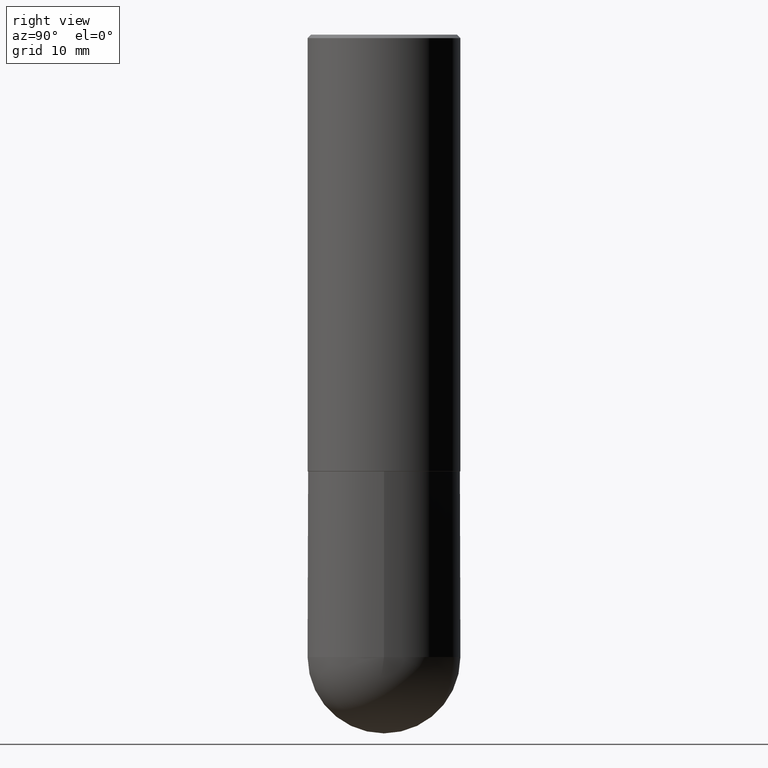
[diagram: clean part render]
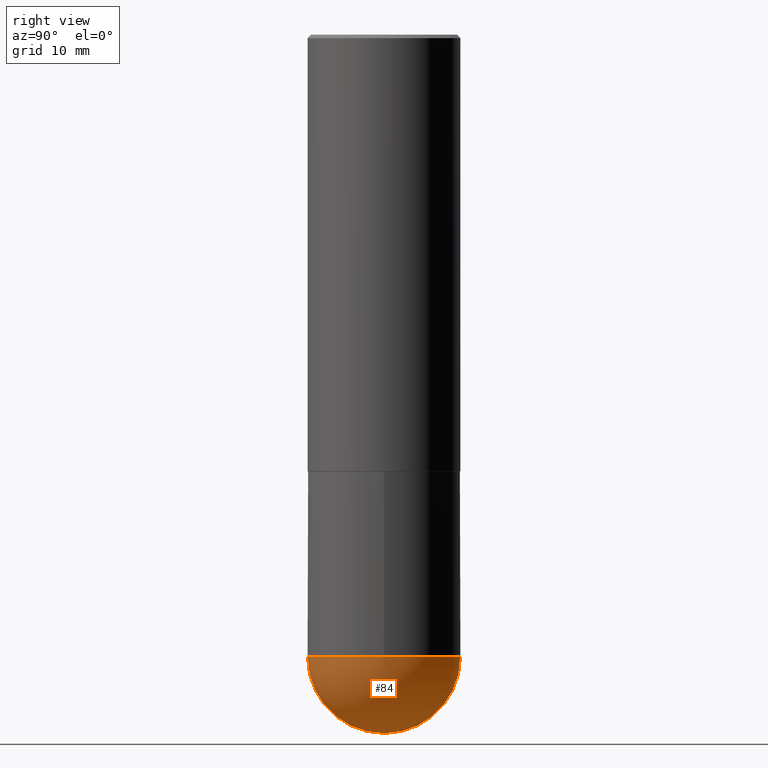
[diagram: same view with one face highlighted and labeled with its STEP entity id]
A machine part, right view. The second image highlights one B-rep face of the part: STEP entity #84.
In plain terms, the highlighted spherical surface has radius 11.1125 mm.
Its self-contained STEP definition (entity closure, byte-faithful):
#5 = EDGE_CURVE ( 'NONE', #383, #230, #282, .T. ) ;
#13 = CARTESIAN_POINT ( 'NONE',  ( 3.055046171487827277E-15, 0.4374999999999873435, -3.562500000000001776 ) ) ;
#33 = DIRECTION ( 'NONE',  ( 1.000000000000000000, -6.982962677686265133E-15, 0.000000000000000000 ) ) ;
#40 = ORIENTED_EDGE ( 'NONE', *, *, #260, .F. ) ;
#48 = DIRECTION ( 'NONE',  ( 1.000000000000000000, -6.982962677686265922E-15, 4.883557194083112340E-29 ) ) ;
#59 = CARTESIAN_POINT ( 'NONE',  ( 8.380862844120662879E-29, -1.291258463776875784E-14, -3.562500000000000000 ) ) ;
#70 = DIRECTION ( 'NONE',  ( -7.105427357601001070E-15, -1.000000000000000000, 0.000000000000000000 ) ) ;
#76 = AXIS2_PLACEMENT_3D ( 'NONE', #59, #406, #289 ) ;
#84 = ADVANCED_FACE ( 'NONE', ( #208 ), #311, .T. ) ;
#89 = EDGE_LOOP ( 'NONE', ( #91, #101, #40, #307 ) ) ;
#91 = ORIENTED_EDGE ( 'NONE', *, *, #5, .F. ) ;
#92 = CARTESIAN_POINT ( 'NONE',  ( 8.711982622034549126E-29, -1.243840226962870597E-14, -3.562500000000000000 ) ) ;
#101 = ORIENTED_EDGE ( 'NONE', *, *, #211, .T. ) ;
#119 = DIRECTION ( 'NONE',  ( -2.445468806185136597E-29, 3.491481338843145583E-15, 1.000000000000000000 ) ) ;
#130 = AXIS2_PLACEMENT_3D ( 'NONE', #92, #119, #33 ) ;
#131 = CARTESIAN_POINT ( 'NONE',  ( 8.711982622034549126E-29, -1.243840226962870597E-14, -3.562500000000000000 ) ) ;
#139 = EDGE_CURVE ( 'NONE', #230, #405, #229, .T. ) ;
#147 = CARTESIAN_POINT ( 'NONE',  ( 8.380862844120662879E-29, -1.291258463776875784E-14, -3.562500000000000000 ) ) ;
#177 = DIRECTION ( 'NONE',  ( 6.982962677686265922E-15, 1.000000000000000000, 0.000000000000000000 ) ) ;
#184 = AXIS2_PLACEMENT_3D ( 'NONE', #131, #378, #345 ) ;
#208 = FACE_OUTER_BOUND ( 'NONE', #89, .T. ) ;
#209 = AXIS2_PLACEMENT_3D ( 'NONE', #147, #48, #177 ) ;
#211 = EDGE_CURVE ( 'NONE', #383, #341, #337, .T. ) ;
#229 = CIRCLE ( 'NONE', #130, 0.4374999999999998890 ) ;
#230 = VERTEX_POINT ( 'NONE', #314 ) ;
#260 = EDGE_CURVE ( 'NONE', #405, #341, #264, .T. ) ;
#264 = CIRCLE ( 'NONE', #184, 0.4374999999999998890 ) ;
#266 = DIRECTION ( 'NONE',  ( -1.000000000000000000, 7.105427357601001070E-15, -4.926315508542082329E-29 ) ) ;
#282 = CIRCLE ( 'NONE', #367, 0.4375000000000001665 ) ;
#289 = DIRECTION ( 'NONE',  ( 6.982962677686265922E-15, 1.000000000000000000, -3.746534391310987979E-15 ) ) ;
#307 = ORIENTED_EDGE ( 'NONE', *, *, #139, .F. ) ;
#311 = SPHERICAL_SURFACE ( 'NONE', #76, 0.4375000000000001665 ) ;
#314 = CARTESIAN_POINT ( 'NONE',  ( -3.108624468950352327E-15, -0.4375000000000127676, -3.562499999999998224 ) ) ;
#323 = CARTESIAN_POINT ( 'NONE',  ( 0.4374999999999998890, -1.363859897985603030E-14, -3.562500000000000000 ) ) ;
#337 = CIRCLE ( 'NONE', #209, 0.4375000000000001665 ) ;
#341 = VERTEX_POINT ( 'NONE', #13 ) ;
#345 = DIRECTION ( 'NONE',  ( 1.000000000000000000, -6.982962677686265133E-15, 0.000000000000000000 ) ) ;
#367 = AXIS2_PLACEMENT_3D ( 'NONE', #373, #266, #70 ) ;
#373 = CARTESIAN_POINT ( 'NONE',  ( 8.380862844120662879E-29, -1.291258463776875784E-14, -3.562500000000000000 ) ) ;
#378 = DIRECTION ( 'NONE',  ( -2.445468806185136597E-29, 3.491481338843145583E-15, 1.000000000000000000 ) ) ;
#383 = VERTEX_POINT ( 'NONE', #392 ) ;
#392 = CARTESIAN_POINT ( 'NONE',  ( 9.469462209402459055E-29, -1.441331857478128510E-14, -4.000000000000000000 ) ) ;
#405 = VERTEX_POINT ( 'NONE', #323 ) ;
#406 = DIRECTION ( 'NONE',  ( -1.000000000000000000, 6.982962677686265922E-15, -4.883557194083112340E-29 ) ) ;